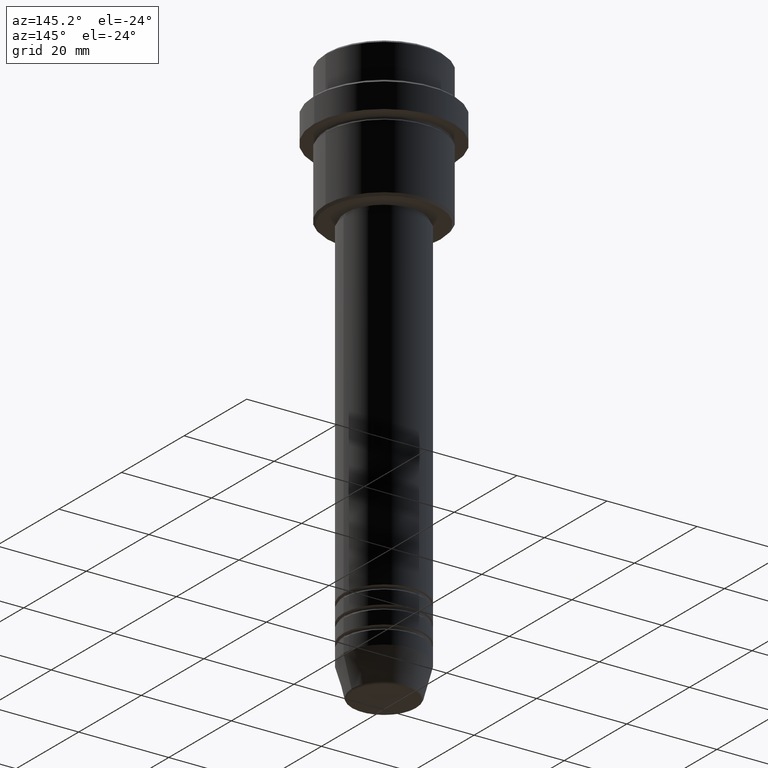
[diagram: clean part render]
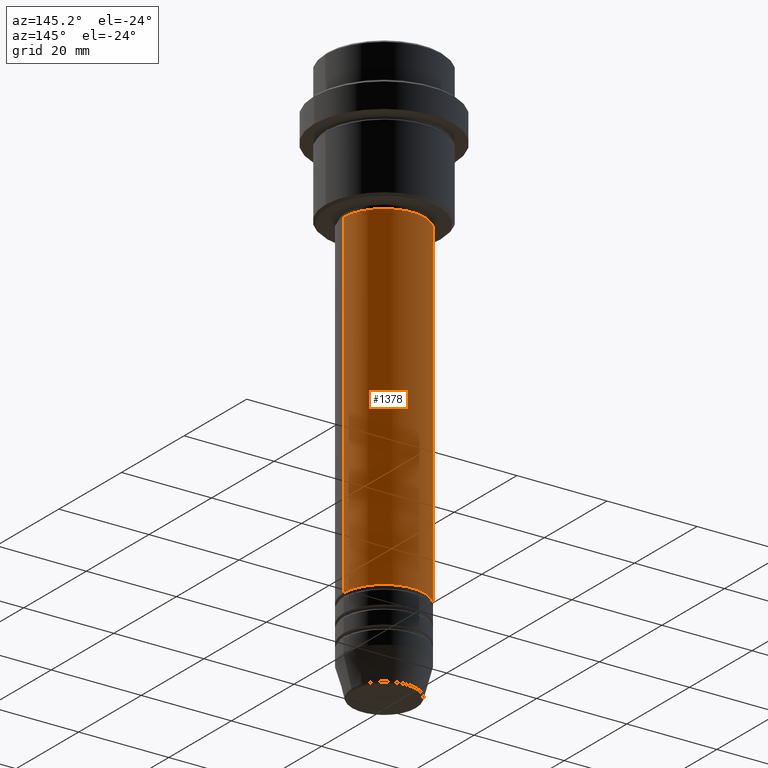
[diagram: same view with one face highlighted and labeled with its STEP entity id]
A machine part, auxiliary view. The second image highlights one B-rep face of the part: STEP entity #1378.
In plain terms, the highlighted cylindrical surface (partial cylindrical patch) has radius 9 mm, axis along (-0, -0, 1).
Its self-contained STEP definition (entity closure, byte-faithful):
#15 = DIRECTION ( 'NONE',  ( -0.000000000000000000, -0.000000000000000000, 1.000000000000000000 ) ) ;
#84 = VECTOR ( 'NONE', #818, 1000.000000000000000 ) ;
#91 = VERTEX_POINT ( 'NONE', #427 ) ;
#146 = EDGE_CURVE ( 'NONE', #257, #91, #679, .T. ) ;
#157 = AXIS2_PLACEMENT_3D ( 'NONE', #1069, #536, #316 ) ;
#239 = VERTEX_POINT ( 'NONE', #356 ) ;
#257 = VERTEX_POINT ( 'NONE', #1043 ) ;
#261 = ORIENTED_EDGE ( 'NONE', *, *, #1415, .F. ) ;
#316 = DIRECTION ( 'NONE',  ( 1.000000000000000000, 0.000000000000000000, 0.000000000000000000 ) ) ;
#356 = CARTESIAN_POINT ( 'NONE',  ( -9.000000000000000000, 1.102182119232617714E-15, -106.9999999999998721 ) ) ;
#400 = CARTESIAN_POINT ( 'NONE',  ( 0.000000000000000000, 0.000000000000000000, -106.9999999999998721 ) ) ;
#427 = CARTESIAN_POINT ( 'NONE',  ( 9.000000000000001776, 0.000000000000000000, -31.99999999999997868 ) ) ;
#482 = VERTEX_POINT ( 'NONE', #1280 ) ;
#493 = CARTESIAN_POINT ( 'NONE',  ( -9.000000000000001776, 1.102182119232617911E-15, 0.000000000000000000 ) ) ;
#503 = CIRCLE ( 'NONE', #1041, 9.000000000000001776 ) ;
#536 = DIRECTION ( 'NONE',  ( -0.000000000000000000, -0.000000000000000000, 1.000000000000000000 ) ) ;
#590 = DIRECTION ( 'NONE',  ( -0.000000000000000000, -0.000000000000000000, 1.000000000000000000 ) ) ;
#657 = CIRCLE ( 'NONE', #751, 9.000000000000000000 ) ;
#679 = LINE ( 'NONE', #1416, #1306 ) ;
#727 = ORIENTED_EDGE ( 'NONE', *, *, #815, .T. ) ;
#730 = EDGE_CURVE ( 'NONE', #239, #482, #1042, .T. ) ;
#751 = AXIS2_PLACEMENT_3D ( 'NONE', #400, #590, #830 ) ;
#806 = EDGE_LOOP ( 'NONE', ( #727, #1245, #261, #1189 ) ) ;
#815 = EDGE_CURVE ( 'NONE', #257, #239, #657, .T. ) ;
#818 = DIRECTION ( 'NONE',  ( -0.000000000000000000, -0.000000000000000000, 1.000000000000000000 ) ) ;
#830 = DIRECTION ( 'NONE',  ( 1.000000000000000000, 0.000000000000000000, 0.000000000000000000 ) ) ;
#862 = CARTESIAN_POINT ( 'NONE',  ( 0.000000000000000000, 0.000000000000000000, -31.99999999999997868 ) ) ;
#962 = DIRECTION ( 'NONE',  ( -0.000000000000000000, -0.000000000000000000, 1.000000000000000000 ) ) ;
#978 = CYLINDRICAL_SURFACE ( 'NONE', #157, 9.000000000000001776 ) ;
#1041 = AXIS2_PLACEMENT_3D ( 'NONE', #862, #962, #1417 ) ;
#1042 = LINE ( 'NONE', #493, #84 ) ;
#1043 = CARTESIAN_POINT ( 'NONE',  ( 9.000000000000000000, 0.000000000000000000, -106.9999999999998721 ) ) ;
#1069 = CARTESIAN_POINT ( 'NONE',  ( 0.000000000000000000, 0.000000000000000000, 0.000000000000000000 ) ) ;
#1189 = ORIENTED_EDGE ( 'NONE', *, *, #146, .F. ) ;
#1245 = ORIENTED_EDGE ( 'NONE', *, *, #730, .T. ) ;
#1280 = CARTESIAN_POINT ( 'NONE',  ( -9.000000000000001776, 1.102182119232617911E-15, -31.99999999999997868 ) ) ;
#1306 = VECTOR ( 'NONE', #15, 1000.000000000000000 ) ;
#1378 = ADVANCED_FACE ( 'NONE', ( #1407 ), #978, .T. ) ;
#1407 = FACE_OUTER_BOUND ( 'NONE', #806, .T. ) ;
#1415 = EDGE_CURVE ( 'NONE', #91, #482, #503, .T. ) ;
#1416 = CARTESIAN_POINT ( 'NONE',  ( 9.000000000000001776, 0.000000000000000000, 0.000000000000000000 ) ) ;
#1417 = DIRECTION ( 'NONE',  ( 1.000000000000000000, 0.000000000000000000, 0.000000000000000000 ) ) ;